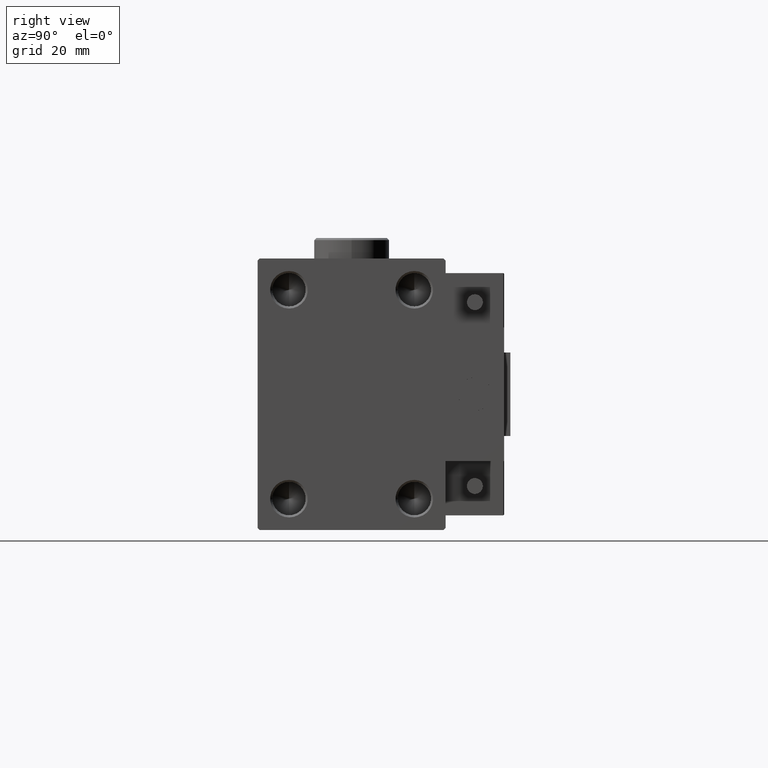
[diagram: clean part render]
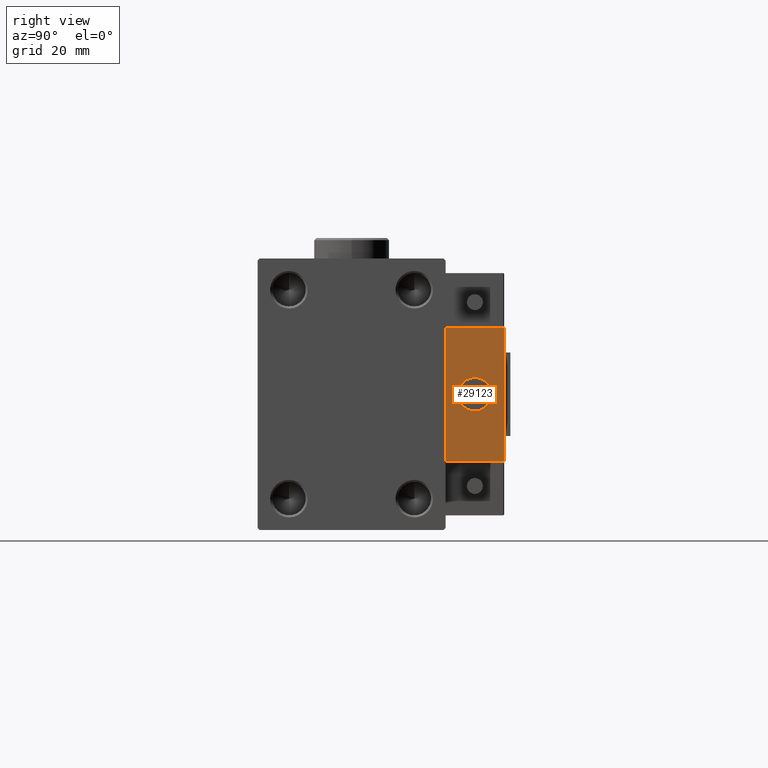
[diagram: same view with one face highlighted and labeled with its STEP entity id]
A machine part, right view. The second image highlights one B-rep face of the part: STEP entity #29123.
In plain terms, the highlighted planar face has unit normal (-1, 0, 0).
Its self-contained STEP definition (entity closure, byte-faithful):
#605 = CARTESIAN_POINT ( 'NONE',  ( 10.00000000000000000, 0.000000000000000000, 0.000000000000000000 ) ) ;
#1947 = CARTESIAN_POINT ( 'NONE',  ( 10.00000000000000000, 4.898587196589412829E-16, -4.000000000000000000 ) ) ;
#2368 = DIRECTION ( 'NONE',  ( 0.000000000000000000, 0.000000000000000000, -1.000000000000000000 ) ) ;
#4297 = LINE ( 'NONE', #35697, #14873 ) ;
#5633 = CARTESIAN_POINT ( 'NONE',  ( 10.00000000000000000, -7.000000000000000000, 15.99999999999999289 ) ) ;
#6084 = CARTESIAN_POINT ( 'NONE',  ( 10.00000000000000000, 7.000000000000000000, 15.99999999999999289 ) ) ;
#6719 = ORIENTED_EDGE ( 'NONE', *, *, #31686, .T. ) ;
#7283 = EDGE_LOOP ( 'NONE', ( #33678, #6719 ) ) ;
#9348 = DIRECTION ( 'NONE',  ( -1.000000000000000000, 0.000000000000000000, 0.000000000000000000 ) ) ;
#9456 = VERTEX_POINT ( 'NONE', #1947 ) ;
#10025 = CARTESIAN_POINT ( 'NONE',  ( 10.00000000000000000, 7.000000000000000000, -16.00000000000000711 ) ) ;
#10064 = LINE ( 'NONE', #6084, #34945 ) ;
#10890 = EDGE_CURVE ( 'NONE', #17004, #9456, #49873, .T. ) ;
#11383 = VERTEX_POINT ( 'NONE', #49377 ) ;
#11680 = EDGE_CURVE ( 'NONE', #11383, #44372, #42074, .T. ) ;
#12963 = DIRECTION ( 'NONE',  ( -1.000000000000000000, 0.000000000000000000, 0.000000000000000000 ) ) ;
#13226 = DIRECTION ( 'NONE',  ( 0.000000000000000000, -1.000000000000000000, 0.000000000000000000 ) ) ;
#13912 = FACE_BOUND ( 'NONE', #7283, .T. ) ;
#14722 = DIRECTION ( 'NONE',  ( 0.000000000000000000, 0.000000000000000000, 1.000000000000000000 ) ) ;
#14873 = VECTOR ( 'NONE', #19986, 1000.000000000000000 ) ;
#15664 = ORIENTED_EDGE ( 'NONE', *, *, #48977, .T. ) ;
#17004 = VERTEX_POINT ( 'NONE', #22622 ) ;
#19959 = EDGE_LOOP ( 'NONE', ( #20576, #50059, #38500, #15664 ) ) ;
#19986 = DIRECTION ( 'NONE',  ( 0.000000000000000000, -1.000000000000000000, 0.000000000000000000 ) ) ;
#20568 = CARTESIAN_POINT ( 'NONE',  ( 10.00000000000000000, 7.000000000000000000, -16.00000000000000711 ) ) ;
#20576 = ORIENTED_EDGE ( 'NONE', *, *, #11680, .T. ) ;
#21480 = CARTESIAN_POINT ( 'NONE',  ( 10.00000000000000000, 0.000000000000000000, 0.000000000000000000 ) ) ;
#22176 = PLANE ( 'NONE',  #34727 ) ;
#22622 = CARTESIAN_POINT ( 'NONE',  ( 10.00000000000000000, 0.000000000000000000, 4.000000000000000000 ) ) ;
#25472 = LINE ( 'NONE', #10025, #43753 ) ;
#29123 = ADVANCED_FACE ( 'NONE', ( #13912, #49573 ), #22176, .F. ) ;
#30417 = DIRECTION ( 'NONE',  ( -1.000000000000000000, 0.000000000000000000, -0.000000000000000000 ) ) ;
#31686 = EDGE_CURVE ( 'NONE', #9456, #17004, #35682, .T. ) ;
#32884 = AXIS2_PLACEMENT_3D ( 'NONE', #605, #9348, #33565 ) ;
#33565 = DIRECTION ( 'NONE',  ( 0.000000000000000000, 0.000000000000000000, 1.000000000000000000 ) ) ;
#33678 = ORIENTED_EDGE ( 'NONE', *, *, #10890, .T. ) ;
#33893 = DIRECTION ( 'NONE',  ( -0.000000000000000000, 0.000000000000000000, 1.000000000000000000 ) ) ;
#34727 = AXIS2_PLACEMENT_3D ( 'NONE', #37885, #30417, #33893 ) ;
#34945 = VECTOR ( 'NONE', #2368, 1000.000000000000000 ) ;
#35682 = CIRCLE ( 'NONE', #42467, 4.000000000000000000 ) ;
#35697 = CARTESIAN_POINT ( 'NONE',  ( 10.00000000000000000, 7.000000000000000000, 15.99999999999999289 ) ) ;
#36375 = CARTESIAN_POINT ( 'NONE',  ( 10.00000000000000000, 7.000000000000000000, 15.99999999999999289 ) ) ;
#36777 = DIRECTION ( 'NONE',  ( 0.000000000000000000, 0.000000000000000000, -1.000000000000000000 ) ) ;
#37074 = VERTEX_POINT ( 'NONE', #36375 ) ;
#37885 = CARTESIAN_POINT ( 'NONE',  ( 10.00000000000000000, 0.000000000000000000, 0.000000000000000000 ) ) ;
#38500 = ORIENTED_EDGE ( 'NONE', *, *, #39464, .F. ) ;
#39464 = EDGE_CURVE ( 'NONE', #37074, #50737, #10064, .T. ) ;
#42074 = LINE ( 'NONE', #5633, #50322 ) ;
#42467 = AXIS2_PLACEMENT_3D ( 'NONE', #21480, #12963, #14722 ) ;
#43753 = VECTOR ( 'NONE', #13226, 1000.000000000000000 ) ;
#44372 = VERTEX_POINT ( 'NONE', #47286 ) ;
#47286 = CARTESIAN_POINT ( 'NONE',  ( 10.00000000000000000, -7.000000000000000000, -16.00000000000000711 ) ) ;
#48138 = EDGE_CURVE ( 'NONE', #50737, #44372, #25472, .T. ) ;
#48977 = EDGE_CURVE ( 'NONE', #37074, #11383, #4297, .T. ) ;
#49377 = CARTESIAN_POINT ( 'NONE',  ( 10.00000000000000000, -7.000000000000000000, 15.99999999999999289 ) ) ;
#49573 = FACE_OUTER_BOUND ( 'NONE', #19959, .T. ) ;
#49873 = CIRCLE ( 'NONE', #32884, 4.000000000000000000 ) ;
#50059 = ORIENTED_EDGE ( 'NONE', *, *, #48138, .F. ) ;
#50322 = VECTOR ( 'NONE', #36777, 1000.000000000000000 ) ;
#50737 = VERTEX_POINT ( 'NONE', #20568 ) ;